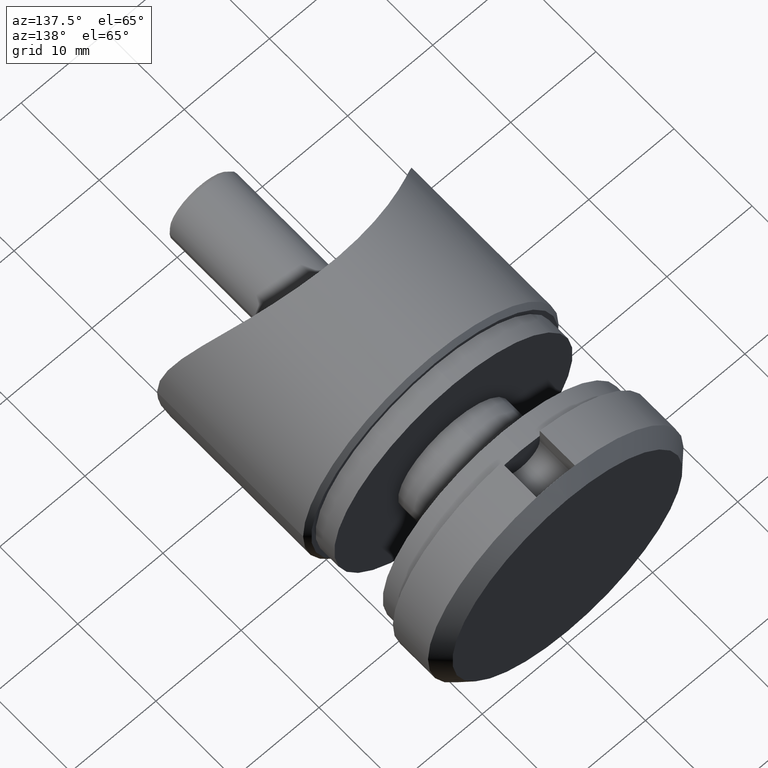
[diagram: clean part render]
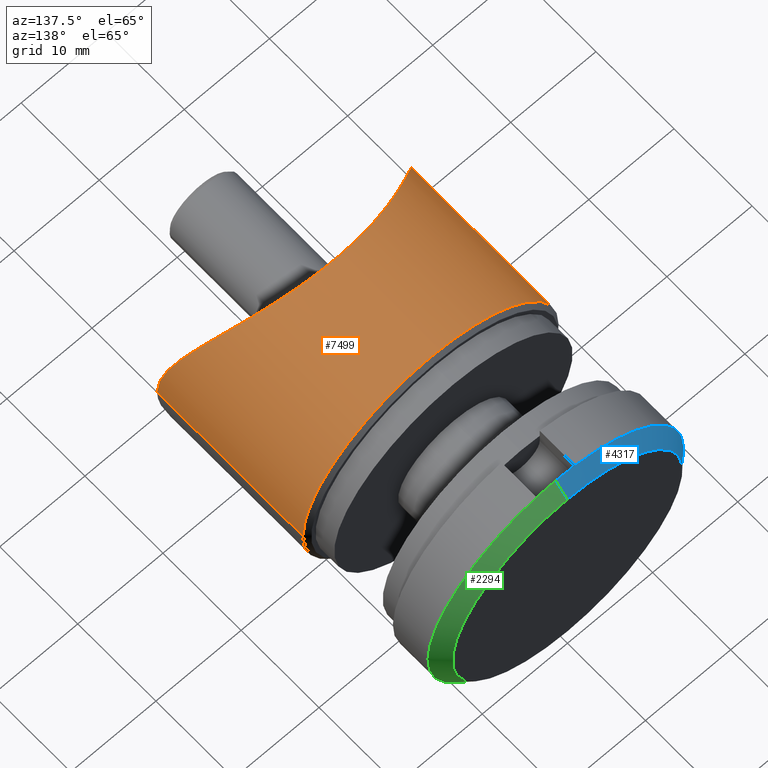
[diagram: same view with three faces highlighted in distinct colors, each labeled with its STEP entity id]
A machine part, auxiliary view with three faces highlighted in distinct colors.
Their STEP definitions:

[orange] entity #7499 — the highlighted cylindrical surface (partial cylindrical patch) has radius 15 mm, axis along (-0, -1, -0).
#99 = CARTESIAN_POINT ( 'NONE',  ( -9.247360983637173959, -2.103467087323838136, 11.84956196566221642 ) ) ;
#241 = CARTESIAN_POINT ( 'NONE',  ( -14.79309002106216475, -6.013676570960109657, 2.533536598195614165 ) ) ;
#440 = DIRECTION ( 'NONE',  ( -1.650797095189058802E-31, -1.000000000000000000, -0.000000000000000000 ) ) ;
#560 = VERTEX_POINT ( 'NONE', #10472 ) ;
#775 = CARTESIAN_POINT ( 'NONE',  ( -7.347880794884114806E-16, 12.50000000000000000, 15.00000000000000178 ) ) ;
#820 = CARTESIAN_POINT ( 'NONE',  ( 13.41760145868459908, -4.783764563336502462, 6.722883565555990870 ) ) ;
#1183 = CARTESIAN_POINT ( 'NONE',  ( -11.32118218139259191, -3.259145242482941018, 9.886381310683775681 ) ) ;
#1369 = CARTESIAN_POINT ( 'NONE',  ( -9.977806632513969376, -2.478707036671748742, 11.24068842236448162 ) ) ;
#1710 = EDGE_CURVE ( 'NONE', #4631, #2352, #5045, .T. ) ;
#1916 = CIRCLE ( 'NONE', #4310, 15.00000000000000178 ) ;
#2008 = VERTEX_POINT ( 'NONE', #2639 ) ;
#2256 = CARTESIAN_POINT ( 'NONE',  ( -1.005100079473335128, 0.0009410588674151550452, 15.00133003043902846 ) ) ;
#2305 = CARTESIAN_POINT ( 'NONE',  ( -6.790344218099431117, -1.094644267676415872, 13.41143013350196078 ) ) ;
#2326 = LINE ( 'NONE', #2702, #6329 ) ;
#2349 = CARTESIAN_POINT ( 'NONE',  ( 1.050626157901719093, -0.01991855300508594065, 14.97188250659245234 ) ) ;
#2352 = VERTEX_POINT ( 'NONE', #775 ) ;
#2438 = CARTESIAN_POINT ( 'NONE',  ( -13.62292504831276752, -4.954430224184656950, 6.297059881936443837 ) ) ;
#2639 = CARTESIAN_POINT ( 'NONE',  ( -15.00000000000000355, -6.218678295958000035, 1.799096609950244379E-15 ) ) ;
#2702 = CARTESIAN_POINT ( 'NONE',  ( 15.00000000000000000, 10.49999999999999822, 0.000000000000000000 ) ) ;
#3154 = CARTESIAN_POINT ( 'NONE',  ( 14.00305171526047232, -5.280944613301205237, 5.398952671795225200 ) ) ;
#3306 = EDGE_CURVE ( 'NONE', #11988, #2008, #9411, .T. ) ;
#3364 = CARTESIAN_POINT ( 'NONE',  ( 0.5320355225887009043, -0.0004841991488968378833, 14.99931566491221879 ) ) ;
#3462 = CARTESIAN_POINT ( 'NONE',  ( 5.699236886631593002, -0.7790748501655614389, 13.87729466244316079 ) ) ;
#3505 = CARTESIAN_POINT ( 'NONE',  ( -4.005033879452522427, -0.3759934740618178228, 14.46412745145087264 ) ) ;
#4017 = DIRECTION ( 'NONE',  ( 1.000000000000000000, 0.000000000000000000, 0.000000000000000000 ) ) ;
#4093 = CARTESIAN_POINT ( 'NONE',  ( 15.00000000000000178, -6.218678295958002700, 1.034344060573792135 ) ) ;
#4181 = CARTESIAN_POINT ( 'NONE',  ( 15.00000000000000711, -6.218678295957958291, 1.012818476025527101E-14 ) ) ;
#4191 = CARTESIAN_POINT ( 'NONE',  ( 15.00000000000000000, 12.50000000000000000, 0.000000000000000000 ) ) ;
#4225 = CARTESIAN_POINT ( 'NONE',  ( 10.32371503841146776, -2.679498512906845153, 10.89239739286136910 ) ) ;
#4278 = CARTESIAN_POINT ( 'NONE',  ( 8.856195033793833105, -1.933633055654745192, 12.11594143917158739 ) ) ;
#4310 = AXIS2_PLACEMENT_3D ( 'NONE', #9259, #13594, #6937 ) ;
#4496 = CARTESIAN_POINT ( 'NONE',  ( 5.000757390721830120, -0.5968245632355041463, 14.14407592239056832 ) ) ;
#4535 = CARTESIAN_POINT ( 'NONE',  ( -5.427672039333993226, -0.7011243682898478102, 13.99229017852160695 ) ) ;
#4631 = VERTEX_POINT ( 'NONE', #4191 ) ;
#4638 = CARTESIAN_POINT ( 'NONE',  ( 6.830061313045299620, -1.108259818986123024, 13.39104156783523614 ) ) ;
#4685 = CARTESIAN_POINT ( 'NONE',  ( -4.961759016571151371, -0.5830047866001240031, 14.16447057848799851 ) ) ;
#4841 = DIRECTION ( 'NONE',  ( -1.650797095189058802E-31, -1.000000000000000000, -0.000000000000000000 ) ) ;
#5045 = CIRCLE ( 'NONE', #7887, 15.00000000000000178 ) ;
#5347 = CARTESIAN_POINT ( 'NONE',  ( 12.71281392838358570, -4.231452424652480282, 7.975591587867550736 ) ) ;
#5355 = EDGE_CURVE ( 'NONE', #4631, #560, #2326, .T. ) ;
#5527 = ORIENTED_EDGE ( 'NONE', *, *, #10428, .F. ) ;
#5696 = CARTESIAN_POINT ( 'NONE',  ( -14.48773947438725429, -5.720170169769271951, 4.015306362516247063 ) ) ;
#5741 = CARTESIAN_POINT ( 'NONE',  ( -15.00000000000000355, -6.218678295958000035, 1.799096609950244379E-15 ) ) ;
#5786 = CARTESIAN_POINT ( 'NONE',  ( 5.469162458992211207, -0.7161850585369443634, 13.96963564937746582 ) ) ;
#5825 = ORIENTED_EDGE ( 'NONE', *, *, #5355, .F. ) ;
#6329 = VECTOR ( 'NONE', #10519, 1000.000000000000000 ) ;
#6475 = VECTOR ( 'NONE', #4841, 1000.000000000000000 ) ;
#6502 = CARTESIAN_POINT ( 'NONE',  ( 11.32166461596433393, -3.259760859046703096, 9.885017094419540129 ) ) ;
#6603 = ORIENTED_EDGE ( 'NONE', *, *, #1710, .T. ) ;
#6751 = CARTESIAN_POINT ( 'NONE',  ( -15.00000000000000711, -6.218678295957998259, 0.5077510589398881446 ) ) ;
#6802 = CARTESIAN_POINT ( 'NONE',  ( -3.510902656690084722, -0.2866766079428031966, 14.59220396397109454 ) ) ;
#6900 = CARTESIAN_POINT ( 'NONE',  ( -7.657603035913631118, -1.412317715533601303, 12.93394447506753409 ) ) ;
#6937 = DIRECTION ( 'NONE',  ( 0.000000000000000000, 0.000000000000000000, 1.000000000000000000 ) ) ;
#7233 = CARTESIAN_POINT ( 'NONE',  ( -2.571758278209441267E-15, 12.50000000000000000, 0.000000000000000000 ) ) ;
#7449 = ORIENTED_EDGE ( 'NONE', *, *, #3306, .T. ) ;
#7476 = CARTESIAN_POINT ( 'NONE',  ( 14.46728747188645414, -5.702331138794981769, 3.992967800225836861 ) ) ;
#7499 = ADVANCED_FACE ( 'NONE', ( #13036 ), #12855, .T. ) ;
#7523 = CARTESIAN_POINT ( 'NONE',  ( 9.972360813657152434, -2.487381531895560105, 11.21521774658429216 ) ) ;
#7777 = EDGE_CURVE ( 'NONE', #2352, #11988, #1916, .T. ) ;
#7887 = AXIS2_PLACEMENT_3D ( 'NONE', #7233, #9557, #11655 ) ;
#7958 = ORIENTED_EDGE ( 'NONE', *, *, #7777, .T. ) ;
#8286 = AXIS2_PLACEMENT_3D ( 'NONE', #12842, #440, #4017 ) ;
#8363 = B_SPLINE_CURVE_WITH_KNOTS ( 'NONE', 3,
 ( #4181, #4093, #9802, #13111, #7476, #11849, #3154, #11999, #820, #13057, #5347, #14192, #6502, #4225, #7523, #8637, #4278, #9082, #4638, #3462, #5786, #4496, #9036, #11236, #13557, #13463, #10013, #2349, #3364, #2256, #11322, #6802, #3505, #4685, #4535, #2305, #6900, #99, #1369, #1183, #8940, #12454, #12360, #11138, #2438, #12409, #5696, #241, #10198, #11187, #6751, #5741 ),
 .UNSPECIFIED., .F., .F.,
 ( 4, 2, 2, 2, 2, 2, 2, 2, 2, 2, 2, 2, 2, 2, 2, 2, 2, 2, 2, 2, 2, 2, 2, 2, 2, 4 ),
 ( 1.462246867263063944E-17, 0.003043758694755619495, 0.004565638042133422086, 0.006087517389511225112, 0.007609396736889029005, 0.009131276084266830295, 0.01217503477902243808, 0.01369691412640023850, 0.01521879347377804240, 0.01826255216853364324, 0.01902349184222254519, 0.01978443151591144714, 0.02130631086328925103, 0.02282819021066705145, 0.02435006955804485534, 0.02739382825280046313, 0.02891570760017826702, 0.03043758694755607092, 0.03348134564231167870, 0.03652510433706729343, 0.03956886303182290121, 0.04109074237920070510, 0.04261262172657851593, 0.04565638042133412372, 0.04717825976871192761, 0.04870013911608973151 ),
 .UNSPECIFIED. ) ;
#8637 = CARTESIAN_POINT ( 'NONE',  ( 9.237072866227267198, -2.113707667684220137, 11.82816867334382493 ) ) ;
#8940 = CARTESIAN_POINT ( 'NONE',  ( -11.91801986090202981, -3.655072002882634230, 9.157063860970918512 ) ) ;
#9036 = CARTESIAN_POINT ( 'NONE',  ( 4.761877183333218078, -0.5402606647149540420, 14.22630801687191848 ) ) ;
#9082 = CARTESIAN_POINT ( 'NONE',  ( 7.672812205234291305, -1.418486010766925931, 12.92442890805342692 ) ) ;
#9257 = EDGE_LOOP ( 'NONE', ( #6603, #7958, #7449, #5527, #5825 ) ) ;
#9259 = CARTESIAN_POINT ( 'NONE',  ( -2.571758278209441267E-15, 12.50000000000000000, 0.000000000000000000 ) ) ;
#9411 = LINE ( 'NONE', #10305, #6475 ) ;
#9557 = DIRECTION ( 'NONE',  ( -0.000000000000000000, -1.000000000000000000, -0.000000000000000000 ) ) ;
#9802 = CARTESIAN_POINT ( 'NONE',  ( 14.89436902615569025, -6.111077526726038656, 2.038798103600116818 ) ) ;
#10013 = CARTESIAN_POINT ( 'NONE',  ( 2.067014922011603417, -0.09485572811247361402, 14.86568297882939227 ) ) ;
#10198 = CARTESIAN_POINT ( 'NONE',  ( -14.87132796809171964, -6.090769140047494368, 2.025277182573650858 ) ) ;
#10305 = CARTESIAN_POINT ( 'NONE',  ( -15.00000000000000355, 10.49999999999999822, 1.836970198721029983E-15 ) ) ;
#10428 = EDGE_CURVE ( 'NONE', #560, #2008, #8363, .T. ) ;
#10472 = CARTESIAN_POINT ( 'NONE',  ( 15.00000000000000711, -6.218678295957958291, 1.012818476025527101E-14 ) ) ;
#10519 = DIRECTION ( 'NONE',  ( -1.650797095189058802E-31, -1.000000000000000000, -0.000000000000000000 ) ) ;
#11138 = CARTESIAN_POINT ( 'NONE',  ( -13.41123871904281906, -4.778559293863404278, 6.735564131868740922 ) ) ;
#11187 = CARTESIAN_POINT ( 'NONE',  ( -14.97428582564953281, -6.192801169917168558, 1.014350635900573616 ) ) ;
#11236 = CARTESIAN_POINT ( 'NONE',  ( 4.042126730826350212, -0.3831215996193665929, 14.45387380227851182 ) ) ;
#11322 = CARTESIAN_POINT ( 'NONE',  ( -2.015669960544157036, -0.07202788547275754127, 14.89874124124950505 ) ) ;
#11655 = DIRECTION ( 'NONE',  ( -8.881784197001251337E-16, 0.000000000000000000, 1.000000000000000000 ) ) ;
#11849 = CARTESIAN_POINT ( 'NONE',  ( 14.17178385825920373, -5.431655470514662021, 4.940317896919887097 ) ) ;
#11988 = VERTEX_POINT ( 'NONE', #12777 ) ;
#11999 = CARTESIAN_POINT ( 'NONE',  ( 13.62596788605661224, -4.957008252381672975, 6.290242162325557551 ) ) ;
#12360 = CARTESIAN_POINT ( 'NONE',  ( -12.95448349873012894, -4.415888580998934998, 7.576972049229076411 ) ) ;
#12409 = CARTESIAN_POINT ( 'NONE',  ( -14.19244727420515595, -5.443574732185075149, 4.952033974385715354 ) ) ;
#12454 = CARTESIAN_POINT ( 'NONE',  ( -12.70846394514502009, -4.228233205933711325, 7.982336634384554763 ) ) ;
#12777 = CARTESIAN_POINT ( 'NONE',  ( -15.00000000000000355, 12.50000000000000000, 1.836970198721029983E-15 ) ) ;
#12842 = CARTESIAN_POINT ( 'NONE',  ( -2.571758278209441661E-15, 10.49999999999999822, 0.000000000000000000 ) ) ;
#12855 = CYLINDRICAL_SURFACE ( 'NONE', #8286, 15.00000000000000178 ) ;
#13036 = FACE_OUTER_BOUND ( 'NONE', #9257, .T. ) ;
#13057 = CARTESIAN_POINT ( 'NONE',  ( 12.96159531450897262, -4.421386776048494838, 7.564802657242080564 ) ) ;
#13111 = CARTESIAN_POINT ( 'NONE',  ( 14.59274859546300895, -5.821081281424335785, 3.507338025946418192 ) ) ;
#13463 = CARTESIAN_POINT ( 'NONE',  ( 2.567833236126266794, -0.1501723778681148258, 14.78717851802791294 ) ) ;
#13557 = CARTESIAN_POINT ( 'NONE',  ( 3.555390056605915117, -0.2943019251829576688, 14.58127626780210129 ) ) ;
#13594 = DIRECTION ( 'NONE',  ( -0.000000000000000000, -1.000000000000000000, -0.000000000000000000 ) ) ;
#14192 = CARTESIAN_POINT ( 'NONE',  ( 11.91754901232678421, -3.654601608486284015, 9.158319832559740803 ) ) ;

[blue] entity #4317 — the highlighted conical surface has half-angle 45 deg.
#137 = ORIENTED_EDGE ( 'NONE', *, *, #13844, .F. ) ;
#183 = AXIS2_PLACEMENT_3D ( 'NONE', #8962, #5671, #2376 ) ;
#805 = DIRECTION ( 'NONE',  ( -0.000000000000000000, -1.000000000000000000, -0.000000000000000000 ) ) ;
#1774 = DIRECTION ( 'NONE',  ( 0.000000000000000000, 0.000000000000000000, -1.000000000000000000 ) ) ;
#2014 = CARTESIAN_POINT ( 'NONE',  ( 0.000000000000000000, 9.500000000000001776, 0.000000000000000000 ) ) ;
#2376 = DIRECTION ( 'NONE',  ( 0.000000000000000000, 0.000000000000000000, -1.000000000000000000 ) ) ;
#2415 = EDGE_CURVE ( 'NONE', #7502, #13889, #5782, .T. ) ;
#3260 = VERTEX_POINT ( 'NONE', #10402 ) ;
#3269 = ORIENTED_EDGE ( 'NONE', *, *, #10234, .F. ) ;
#3309 = CARTESIAN_POINT ( 'NONE',  ( 0.000000000000000000, 9.500000000000001776, -15.00000000000000355 ) ) ;
#3662 = CIRCLE ( 'NONE', #12130, 15.00000000000000178 ) ;
#4133 = CARTESIAN_POINT ( 'NONE',  ( 0.000000000000000000, 11.00000000000000000, 0.000000000000000000 ) ) ;
#4317 = ADVANCED_FACE ( 'NONE', ( #12936 ), #7718, .T. ) ;
#4326 = CARTESIAN_POINT ( 'NONE',  ( 0.000000000000000000, 9.500000000000001776, -15.00000000000000178 ) ) ;
#4757 = AXIS2_PLACEMENT_3D ( 'NONE', #4133, #12808, #10566 ) ;
#5496 = VERTEX_POINT ( 'NONE', #6206 ) ;
#5671 = DIRECTION ( 'NONE',  ( -0.000000000000000000, -1.000000000000000000, -0.000000000000000000 ) ) ;
#5782 = LINE ( 'NONE', #4326, #11168 ) ;
#6062 = ORIENTED_EDGE ( 'NONE', *, *, #11059, .F. ) ;
#6206 = CARTESIAN_POINT ( 'NONE',  ( 1.745121688784978228E-15, 11.00000000000000000, 13.50000000000000000 ) ) ;
#6358 = EDGE_LOOP ( 'NONE', ( #137, #13681, #10675, #3269, #6062 ) ) ;
#7308 = CARTESIAN_POINT ( 'NONE',  ( 0.000000000000000000, 11.00000000000000000, -13.50000000000000000 ) ) ;
#7502 = VERTEX_POINT ( 'NONE', #7308 ) ;
#7718 = CONICAL_SURFACE ( 'NONE', #10900, 15.00000000000000178, 0.7853981633974488341 ) ;
#8382 = CIRCLE ( 'NONE', #4757, 13.50000000000000000 ) ;
#8582 = CIRCLE ( 'NONE', #183, 15.00000000000000178 ) ;
#8734 = LINE ( 'NONE', #10993, #8895 ) ;
#8895 = VECTOR ( 'NONE', #11042, 1000.000000000000000 ) ;
#8962 = CARTESIAN_POINT ( 'NONE',  ( 0.000000000000000000, 9.500000000000001776, 0.000000000000000000 ) ) ;
#9106 = EDGE_CURVE ( 'NONE', #5496, #7502, #8382, .T. ) ;
#10234 = EDGE_CURVE ( 'NONE', #10648, #13889, #8582, .T. ) ;
#10402 = CARTESIAN_POINT ( 'NONE',  ( 1.836970198721029983E-15, 9.500000000000001776, 15.00000000000000178 ) ) ;
#10566 = DIRECTION ( 'NONE',  ( 0.000000000000000000, 0.000000000000000000, -1.000000000000000000 ) ) ;
#10648 = VERTEX_POINT ( 'NONE', #12068 ) ;
#10675 = ORIENTED_EDGE ( 'NONE', *, *, #2415, .T. ) ;
#10900 = AXIS2_PLACEMENT_3D ( 'NONE', #11992, #14087, #1774 ) ;
#10972 = DIRECTION ( 'NONE',  ( 0.000000000000000000, -0.7071067811865471286, -0.7071067811865479058 ) ) ;
#10993 = CARTESIAN_POINT ( 'NONE',  ( 1.836970198721029983E-15, 9.500000000000001776, 15.00000000000000178 ) ) ;
#11042 = DIRECTION ( 'NONE',  ( 8.659560562354937789E-17, -0.7071067811865471286, 0.7071067811865479058 ) ) ;
#11059 = EDGE_CURVE ( 'NONE', #3260, #10648, #3662, .T. ) ;
#11168 = VECTOR ( 'NONE', #10972, 1000.000000000000000 ) ;
#11992 = CARTESIAN_POINT ( 'NONE',  ( 0.000000000000000000, 9.500000000000001776, 0.000000000000000000 ) ) ;
#12068 = CARTESIAN_POINT ( 'NONE',  ( -2.250000000000000888, 9.500000000000001776, 14.83028994996389116 ) ) ;
#12130 = AXIS2_PLACEMENT_3D ( 'NONE', #2014, #805, #14026 ) ;
#12808 = DIRECTION ( 'NONE',  ( -0.000000000000000000, -1.000000000000000000, -0.000000000000000000 ) ) ;
#12936 = FACE_OUTER_BOUND ( 'NONE', #6358, .T. ) ;
#13681 = ORIENTED_EDGE ( 'NONE', *, *, #9106, .T. ) ;
#13844 = EDGE_CURVE ( 'NONE', #5496, #3260, #8734, .T. ) ;
#13889 = VERTEX_POINT ( 'NONE', #3309 ) ;
#14026 = DIRECTION ( 'NONE',  ( 0.000000000000000000, 0.000000000000000000, -1.000000000000000000 ) ) ;
#14087 = DIRECTION ( 'NONE',  ( -0.000000000000000000, -1.000000000000000000, -0.000000000000000000 ) ) ;

[green] entity #2294 — the highlighted conical surface has half-angle 45 deg.
#78 = ORIENTED_EDGE ( 'NONE', *, *, #10901, .F. ) ;
#319 = CONICAL_SURFACE ( 'NONE', #10021, 15.00000000000000178, 0.7853981633974488341 ) ;
#333 = ORIENTED_EDGE ( 'NONE', *, *, #1476, .T. ) ;
#608 = CIRCLE ( 'NONE', #7137, 13.50000000000000000 ) ;
#788 = DIRECTION ( 'NONE',  ( -0.000000000000000000, -1.000000000000000000, -0.000000000000000000 ) ) ;
#1248 = EDGE_CURVE ( 'NONE', #13889, #14070, #5142, .T. ) ;
#1476 = EDGE_CURVE ( 'NONE', #7502, #5496, #608, .T. ) ;
#2294 = ADVANCED_FACE ( 'NONE', ( #10960 ), #319, .T. ) ;
#2415 = EDGE_CURVE ( 'NONE', #7502, #13889, #5782, .T. ) ;
#3260 = VERTEX_POINT ( 'NONE', #10402 ) ;
#3309 = CARTESIAN_POINT ( 'NONE',  ( 0.000000000000000000, 9.500000000000001776, -15.00000000000000355 ) ) ;
#3608 = AXIS2_PLACEMENT_3D ( 'NONE', #10344, #13602, #12633 ) ;
#3678 = CARTESIAN_POINT ( 'NONE',  ( 0.000000000000000000, 9.500000000000001776, 0.000000000000000000 ) ) ;
#4200 = CIRCLE ( 'NONE', #10626, 15.00000000000000178 ) ;
#4326 = CARTESIAN_POINT ( 'NONE',  ( 0.000000000000000000, 9.500000000000001776, -15.00000000000000178 ) ) ;
#4838 = ORIENTED_EDGE ( 'NONE', *, *, #1248, .F. ) ;
#5142 = CIRCLE ( 'NONE', #3608, 15.00000000000000178 ) ;
#5496 = VERTEX_POINT ( 'NONE', #6206 ) ;
#5782 = LINE ( 'NONE', #4326, #11168 ) ;
#6206 = CARTESIAN_POINT ( 'NONE',  ( 1.745121688784978228E-15, 11.00000000000000000, 13.50000000000000000 ) ) ;
#6325 = DIRECTION ( 'NONE',  ( 0.000000000000000000, 0.000000000000000000, -1.000000000000000000 ) ) ;
#7063 = CARTESIAN_POINT ( 'NONE',  ( 0.000000000000000000, 9.500000000000001776, 0.000000000000000000 ) ) ;
#7137 = AXIS2_PLACEMENT_3D ( 'NONE', #8699, #788, #6325 ) ;
#7308 = CARTESIAN_POINT ( 'NONE',  ( 0.000000000000000000, 11.00000000000000000, -13.50000000000000000 ) ) ;
#7502 = VERTEX_POINT ( 'NONE', #7308 ) ;
#8699 = CARTESIAN_POINT ( 'NONE',  ( 0.000000000000000000, 11.00000000000000000, 0.000000000000000000 ) ) ;
#8734 = LINE ( 'NONE', #10993, #8895 ) ;
#8735 = EDGE_LOOP ( 'NONE', ( #333, #10315, #78, #4838, #11391 ) ) ;
#8895 = VECTOR ( 'NONE', #11042, 1000.000000000000000 ) ;
#9205 = DIRECTION ( 'NONE',  ( 0.000000000000000000, 0.000000000000000000, -1.000000000000000000 ) ) ;
#10021 = AXIS2_PLACEMENT_3D ( 'NONE', #3678, #10327, #9205 ) ;
#10311 = DIRECTION ( 'NONE',  ( 0.000000000000000000, 0.000000000000000000, -1.000000000000000000 ) ) ;
#10315 = ORIENTED_EDGE ( 'NONE', *, *, #13844, .T. ) ;
#10327 = DIRECTION ( 'NONE',  ( -0.000000000000000000, -1.000000000000000000, -0.000000000000000000 ) ) ;
#10344 = CARTESIAN_POINT ( 'NONE',  ( 0.000000000000000000, 9.500000000000001776, 0.000000000000000000 ) ) ;
#10402 = CARTESIAN_POINT ( 'NONE',  ( 1.836970198721029983E-15, 9.500000000000001776, 15.00000000000000178 ) ) ;
#10626 = AXIS2_PLACEMENT_3D ( 'NONE', #7063, #11382, #10311 ) ;
#10901 = EDGE_CURVE ( 'NONE', #14070, #3260, #4200, .T. ) ;
#10960 = FACE_OUTER_BOUND ( 'NONE', #8735, .T. ) ;
#10972 = DIRECTION ( 'NONE',  ( 0.000000000000000000, -0.7071067811865471286, -0.7071067811865479058 ) ) ;
#10993 = CARTESIAN_POINT ( 'NONE',  ( 1.836970198721029983E-15, 9.500000000000001776, 15.00000000000000178 ) ) ;
#11042 = DIRECTION ( 'NONE',  ( 8.659560562354937789E-17, -0.7071067811865471286, 0.7071067811865479058 ) ) ;
#11168 = VECTOR ( 'NONE', #10972, 1000.000000000000000 ) ;
#11382 = DIRECTION ( 'NONE',  ( -0.000000000000000000, -1.000000000000000000, -0.000000000000000000 ) ) ;
#11391 = ORIENTED_EDGE ( 'NONE', *, *, #2415, .F. ) ;
#12531 = CARTESIAN_POINT ( 'NONE',  ( 2.250000000000005773, 9.500000000000001776, 14.83028994996389294 ) ) ;
#12633 = DIRECTION ( 'NONE',  ( 0.000000000000000000, 0.000000000000000000, -1.000000000000000000 ) ) ;
#13602 = DIRECTION ( 'NONE',  ( -0.000000000000000000, -1.000000000000000000, -0.000000000000000000 ) ) ;
#13844 = EDGE_CURVE ( 'NONE', #5496, #3260, #8734, .T. ) ;
#13889 = VERTEX_POINT ( 'NONE', #3309 ) ;
#14070 = VERTEX_POINT ( 'NONE', #12531 ) ;